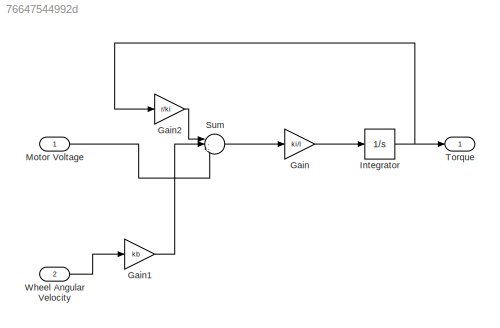
MODEL slx_76647544992d
KIND model
CONFIG AbsTol = auto
CONFIG EnableMultiTasking = off
CONFIG FixedStep = auto
CONFIG MaxStep = auto
CONFIG MinStep = auto
CONFIG RelTol = 1e-3
CONFIG SampleTimeConstraint = Unconstrained
CONFIG SolverName = FixedStepAuto
CONFIG StartTime = 0.0
CONFIG StopTime = 10.0
BLOCK [Gain] Gain
  Gain = ki/l
BLOCK [Gain] Gain1
  Gain = kb
BLOCK [Gain] Gain2
  Gain = r/ki
BLOCK [Integrator] Integrator
BLOCK [Inport] Motor Voltage
BLOCK [Sum] Sum
  Inputs = |--+
BLOCK [Outport] Torque
BLOCK [Inport] Wheel Angular Velocity
  Port = 2
LINE Gain1:1 -> Sum:2
LINE Gain2:1 -> Sum:1
LINE Gain:1 -> Integrator:1
NET Integrator:1 -> Gain2:1, Torque:1
LINE Motor Voltage:1 -> Sum:3
LINE Sum:1 -> Gain:1
LINE Wheel Angular Velocity:1 -> Gain1:1
note: NET lines group one-source signal fan-out (src -> all destinations, sorted); 1:1 wires keep LINE
